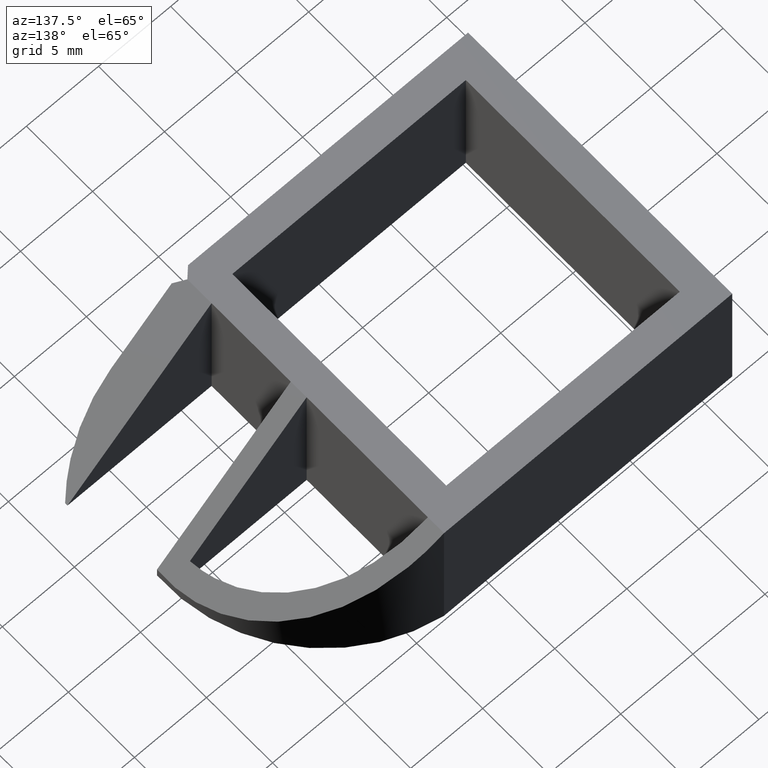
[diagram: clean part render]
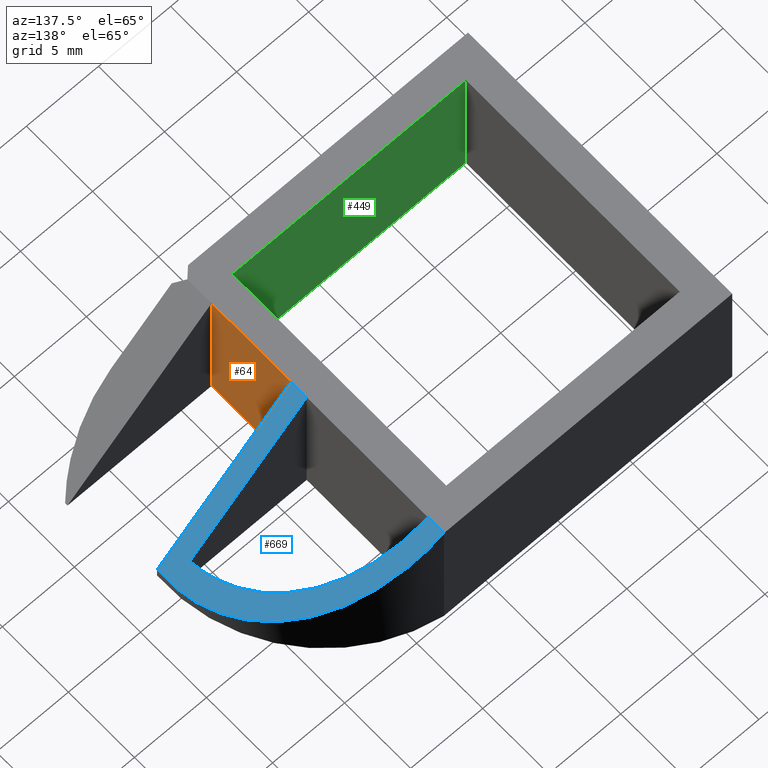
[diagram: same view with three faces highlighted in distinct colors, each labeled with its STEP entity id]
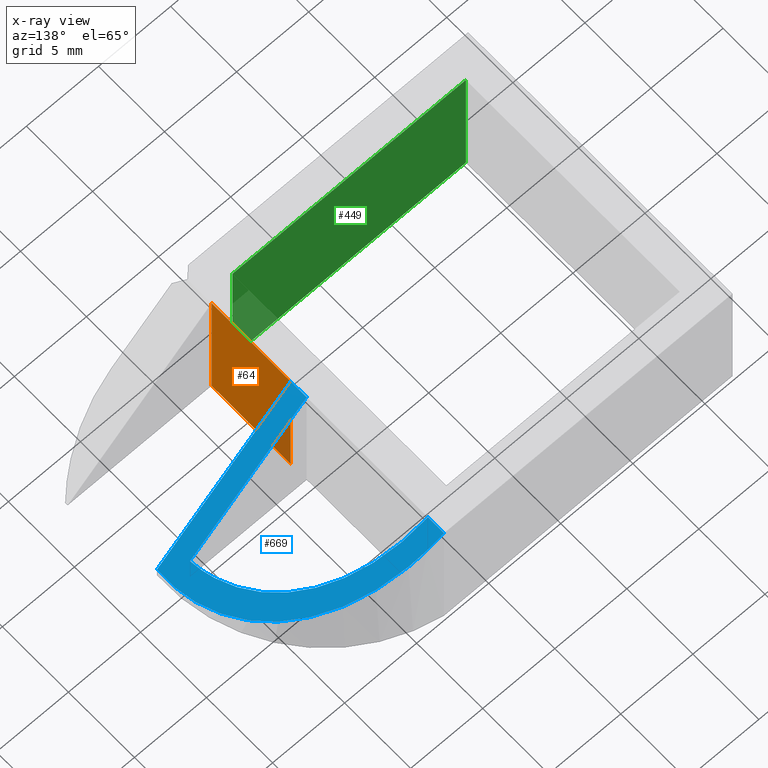
[diagram: x-ray of the same camera — body ghosted, the three highlighted faces saturated]
A machine part, auxiliary view with three faces highlighted in distinct colors.
The next image is the same camera in x-ray (body ghosted, the three faces saturated) — at least one of them is partly hidden behind the body in this view.
Their STEP definitions:

[orange] entity #64 — the highlighted planar face has unit normal (-1, -0, 0).
#7=CARTESIAN_POINT('',(18.100000000001501,-7.599999999996888,10.0));
#8=VERTEX_POINT('',#7);
#17=CARTESIAN_POINT('',(18.100000000001501,-7.599999999996888,0.0));
#18=VERTEX_POINT('',#17);
#25=CARTESIAN_POINT('',(18.100000000001501,-7.599999999996888,10.0));
#26=DIRECTION('',(0.0,0.0,-1.0));
#27=VECTOR('',#26,10.0);
#28=LINE('',#25,#27);
#29=EDGE_CURVE('',#8,#18,#28,.T.);
#34=CARTESIAN_POINT('',(18.100000000001501,-7.599999999996888,10.0));
#35=DIRECTION('',(-1.0,-1.795055E-013,0.0));
#36=DIRECTION('',(-1.795055E-013,1.0,1.224647E-016));
#37=AXIS2_PLACEMENT_3D('',#34,#35,#36);
#38=PLANE('',#37);
#39=CARTESIAN_POINT('',(18.100000000000424,-1.599999999996774,0.0));
#40=VERTEX_POINT('',#39);
#41=CARTESIAN_POINT('',(18.100000000001501,-7.599999999996888,-7.347881E-016));
#42=DIRECTION('',(-1.794120E-013,1.0,1.224647E-016));
#43=VECTOR('',#42,6.000000000000114);
#44=LINE('',#41,#43);
#45=EDGE_CURVE('',#18,#40,#44,.T.);
#46=ORIENTED_EDGE('',*,*,#45,.T.);
#47=CARTESIAN_POINT('',(18.100000000000424,-1.599999999996774,10.0));
#48=VERTEX_POINT('',#47);
#49=CARTESIAN_POINT('',(18.100000000000424,-1.599999999996774,10.0));
#50=DIRECTION('',(0.0,0.0,-1.0));
#51=VECTOR('',#50,10.0);
#52=LINE('',#49,#51);
#53=EDGE_CURVE('',#48,#40,#52,.T.);
#54=ORIENTED_EDGE('',*,*,#53,.F.);
#55=CARTESIAN_POINT('',(18.100000000001501,-7.599999999996888,10.0));
#56=DIRECTION('',(-1.794120E-013,1.0,0.0));
#57=VECTOR('',#56,6.000000000000114);
#58=LINE('',#55,#57);
#59=EDGE_CURVE('',#8,#48,#58,.T.);
#60=ORIENTED_EDGE('',*,*,#59,.F.);
#61=ORIENTED_EDGE('',*,*,#29,.T.);
#62=EDGE_LOOP('',(#46,#54,#60,#61));
#63=FACE_OUTER_BOUND('',#62,.T.);
#64=ADVANCED_FACE('',(#63),#38,.F.);

[blue] entity #669 — the highlighted planar face has unit normal (-0.7071, -0, -0.7071).
#47=CARTESIAN_POINT('',(18.100000000000424,-1.599999999996774,10.0));
#48=VERTEX_POINT('',#47);
#78=CARTESIAN_POINT('',(27.385068294310091,-1.599999999995107,0.714931705690177));
#79=VERTEX_POINT('',#78);
#86=CARTESIAN_POINT('',(18.100000000000424,-1.599999999996774,10.0));
#87=DIRECTION('',(0.707106781186542,1.270100E-013,-0.707106781186553));
#88=VECTOR('',#87,13.131069509373262);
#89=LINE('',#86,#88);
#90=EDGE_CURVE('',#48,#79,#89,.T.);
#110=CARTESIAN_POINT('',(18.101503070952756,10.000000000003363,9.998496929044563));
#111=VERTEX_POINT('',#110);
#118=CARTESIAN_POINT('',(16.409379536533308,-0.869071622922217,11.690620463465720));
#119=DIRECTION('',(0.707106781186508,1.268430E-013,0.707106781186587));
#120=DIRECTION('',(0.707106781186587,1.270162E-013,-0.707106781186508));
#121=AXIS2_PLACEMENT_3D('',#118,#119,#120);
#122=ELLIPSE('',#121,15.556349186103173,11.0);
#123=EDGE_CURVE('',#79,#111,#122,.T.);
#134=CARTESIAN_POINT('',(18.099999999997205,10.000000000003363,10.0));
#135=VERTEX_POINT('',#134);
#144=CARTESIAN_POINT('',(18.099999999997205,10.000000000003363,10.0));
#145=DIRECTION('',(0.707106781212871,0.0,-0.707106781160224));
#146=VECTOR('',#145,0.002125663330469);
#147=LINE('',#144,#146);
#148=EDGE_CURVE('',#135,#111,#147,.T.);
#487=CARTESIAN_POINT('',(18.100000000000207,-0.399999999996728,10.0));
#488=VERTEX_POINT('',#487);
#495=CARTESIAN_POINT('',(26.198147171563122,-0.399999999995161,1.901852828436830));
#496=VERTEX_POINT('',#495);
#497=CARTESIAN_POINT('',(18.100000000000207,-0.399999999996728,10.0));
#498=DIRECTION('',(0.707106781186536,1.369444E-013,-0.707106781186559));
#499=VECTOR('',#498,11.452509560117774);
#500=LINE('',#497,#499);
#501=EDGE_CURVE('',#488,#496,#500,.T.);
#525=CARTESIAN_POINT('',(18.099999999997422,8.784000553774556,10.0));
#526=VERTEX_POINT('',#525);
#549=CARTESIAN_POINT('',(16.409379536533308,-0.869071622922217,11.690620463465720));
#550=DIRECTION('',(-0.707106781186508,-1.268430E-013,-0.707106781186587));
#551=DIRECTION('',(0.707106781186587,1.270162E-013,-0.707106781186508));
#552=AXIS2_PLACEMENT_3D('',#549,#550,#551);
#553=ELLIPSE('',#552,13.859292911255555,9.800000000000001);
#554=EDGE_CURVE('',#526,#496,#553,.T.);
#582=CARTESIAN_POINT('',(18.099999999999287,-1.599999999996774,9.999999999999988));
#583=DIRECTION('',(-1.805963E-013,1.0,0.0));
#584=VECTOR('',#583,1.200000000000046);
#585=LINE('',#582,#584);
#586=EDGE_CURVE('',#48,#488,#585,.T.);
#589=CARTESIAN_POINT('',(18.099999999997422,8.784000553774556,9.999999999999988));
#590=DIRECTION('',(-1.811417E-013,1.0,0.0));
#591=VECTOR('',#590,1.215999446228807);
#592=LINE('',#589,#591);
#593=EDGE_CURVE('',#526,#135,#592,.T.);
#655=CARTESIAN_POINT('',(33.132922896407969,-9.999999999993939,-5.032922896405495));
#656=DIRECTION('',(-0.707106781186508,-1.268430E-013,-0.707106781186587));
#657=DIRECTION('',(-0.707106781186587,-1.270162E-013,0.707106781186508));
#658=AXIS2_PLACEMENT_3D('',#655,#656,#657);
#659=PLANE('',#658);
#660=ORIENTED_EDGE('',*,*,#90,.T.);
#661=ORIENTED_EDGE('',*,*,#123,.T.);
#662=ORIENTED_EDGE('',*,*,#148,.F.);
#663=ORIENTED_EDGE('',*,*,#593,.F.);
#664=ORIENTED_EDGE('',*,*,#554,.T.);
#665=ORIENTED_EDGE('',*,*,#501,.F.);
#666=ORIENTED_EDGE('',*,*,#586,.F.);
#667=EDGE_LOOP('',(#660,#661,#662,#663,#664,#665,#666));
#668=FACE_OUTER_BOUND('',#667,.T.);
#669=ADVANCED_FACE('',(#668),#659,.F.);

[green] entity #449 — the highlighted planar face has unit normal (0, -1, -0).
#394=CARTESIAN_POINT('',(16.200000000001499,-8.099999999997229,0.0));
#395=VERTEX_POINT('',#394);
#402=CARTESIAN_POINT('',(16.200000000001499,-8.099999999997229,10.0));
#403=VERTEX_POINT('',#402);
#404=CARTESIAN_POINT('',(16.200000000001499,-8.099999999997229,10.0));
#405=DIRECTION('',(0.0,0.0,-1.0));
#406=VECTOR('',#405,10.0);
#407=LINE('',#404,#406);
#408=EDGE_CURVE('',#403,#395,#407,.T.);
#419=CARTESIAN_POINT('',(16.200000000001499,-8.099999999997229,10.0));
#420=DIRECTION('',(1.795055E-013,-1.0,-1.224647E-016));
#421=DIRECTION('',(-1.0,-1.795055E-013,0.0));
#422=AXIS2_PLACEMENT_3D('',#419,#420,#421);
#423=PLANE('',#422);
#424=ORIENTED_EDGE('',*,*,#408,.T.);
#425=CARTESIAN_POINT('',(1.453995E-012,-8.100000000000136,0.0));
#426=VERTEX_POINT('',#425);
#427=CARTESIAN_POINT('',(16.200000000001499,-8.099999999997229,0.0));
#428=DIRECTION('',(-1.0,-1.794998E-013,0.0));
#429=VECTOR('',#428,16.200000000000045);
#430=LINE('',#427,#429);
#431=EDGE_CURVE('',#395,#426,#430,.T.);
#432=ORIENTED_EDGE('',*,*,#431,.T.);
#433=CARTESIAN_POINT('',(1.453995E-012,-8.100000000000136,10.0));
#434=VERTEX_POINT('',#433);
#435=CARTESIAN_POINT('',(1.453995E-012,-8.100000000000136,10.0));
#436=DIRECTION('',(0.0,0.0,-1.0));
#437=VECTOR('',#436,10.0);
#438=LINE('',#435,#437);
#439=EDGE_CURVE('',#434,#426,#438,.T.);
#440=ORIENTED_EDGE('',*,*,#439,.F.);
#441=CARTESIAN_POINT('',(16.200000000001499,-8.099999999997229,10.0));
#442=DIRECTION('',(-1.0,-1.794998E-013,0.0));
#443=VECTOR('',#442,16.200000000000045);
#444=LINE('',#441,#443);
#445=EDGE_CURVE('',#403,#434,#444,.T.);
#446=ORIENTED_EDGE('',*,*,#445,.F.);
#447=EDGE_LOOP('',(#424,#432,#440,#446));
#448=FACE_OUTER_BOUND('',#447,.T.);
#449=ADVANCED_FACE('',(#448),#423,.F.);